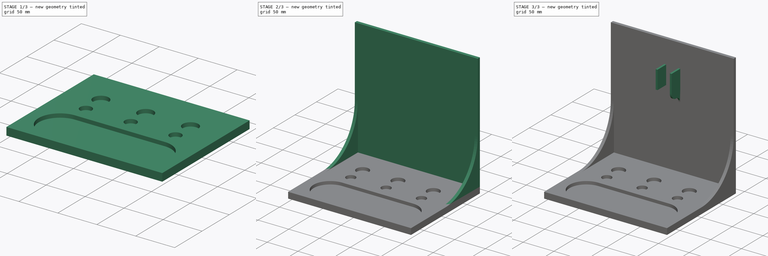
[diagram: build sequence overview — one tinted view per stage of 3, left to right]
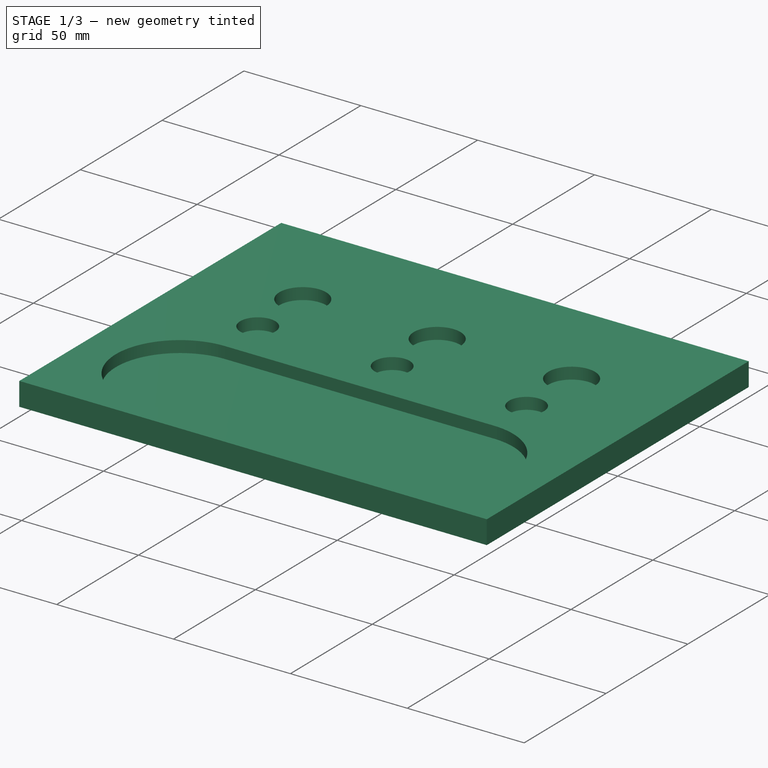
[diagram: stage 1 of 3 — iso view after this stage's code; geometry added in this stage tinted green]
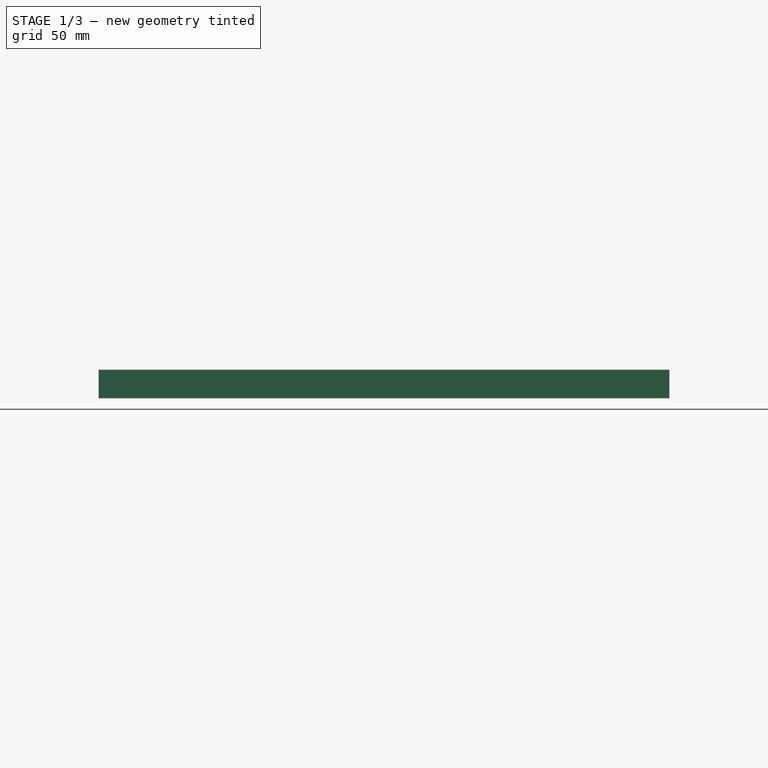
[diagram: stage 1 of 3 — front view after this stage's code; geometry added in this stage tinted green]
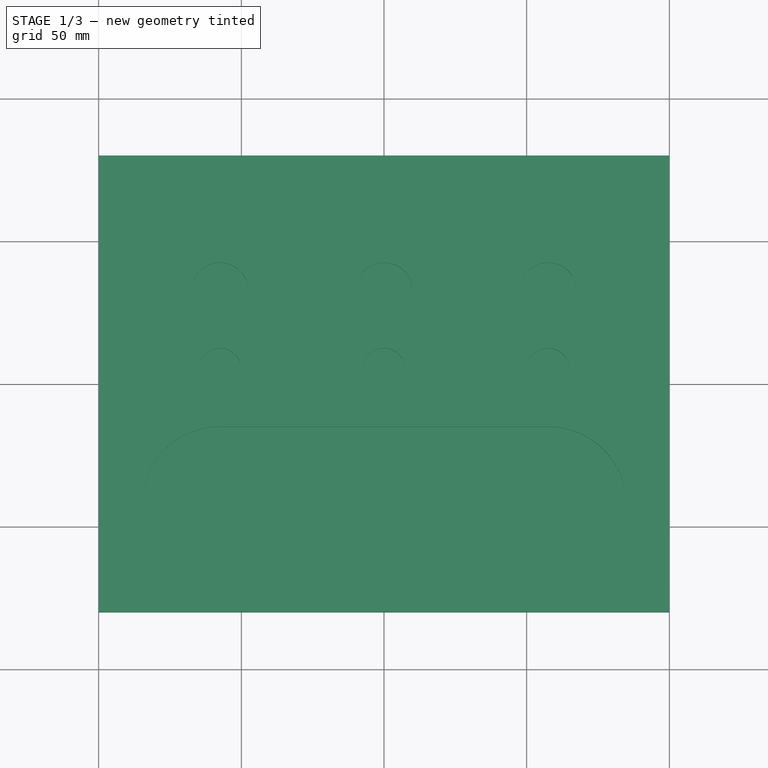
[diagram: stage 1 of 3 — top view after this stage's code; geometry added in this stage tinted green]
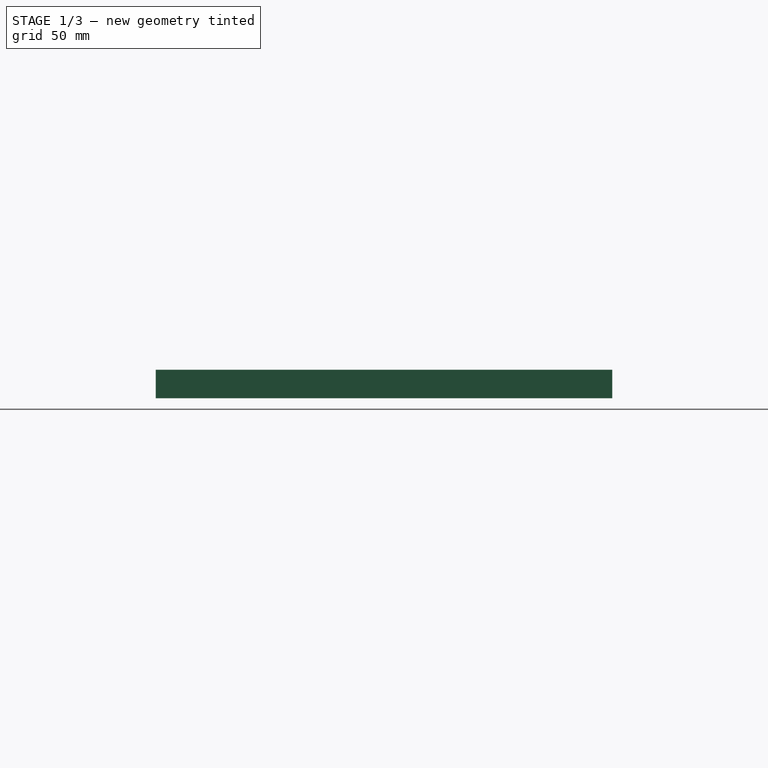
[diagram: stage 1 of 3 — right view after this stage's code; geometry added in this stage tinted green]
FCSTD DOCUMENT  (FreeCAD 0.16R6712 (Git))
Label: ToothBrushingStand
License: All rights reserved
LicenseURL: http://en.wikipedia.org/wiki/All_rights_reserved
objects: Sketcher::SketchObject×7, PartDesign::Pad×6, Spreadsheet::Sheet×1, PartDesign::Pocket×1
note: 21 computed .brp shape members not serialized (recipe doc carries the construction recipe); baked Part::Feature solids carry a one-line shape summary decoded from their .brp

FEATURE [Spreadsheet::Sheet] Spreadsheet  label="Params"
  cells = A1(Base_Depth)=160; A2(Base_Height)=10; A3(Base_Width)=200; A4(Toothpaste_Width)=55; A5(Toothpaste_Len)=170; A6(Timer_Diameter)=15; A7(Toothbrush_Diameter)=20; A8(Toothbrush_Wall)=5; A9(Toothbrush_Length)=190; A10(Toothbrush_Timer_Buffer)=10; A11(Sidewall_Radius)=75; A12(Sidewall_Thickness)=5; A13(Holder_Thickness)=3; A14(Holder_Height)=30; A15(Holder_Depth)=20
FEATURE [Sketcher::SketchObject] Sketch  label="Base"
  expr: Constraints[10] = Params.Base_Depth
  expr: Constraints[9] = Params.Base_Width
  sketch-geometry (4):
    g0: LineSegment StartX=-100 StartY=80 StartZ=0 EndX=100 EndY=80 EndZ=0
    g1: LineSegment StartX=100 StartY=80 StartZ=0 EndX=100 EndY=-80 EndZ=0
    g2: LineSegment StartX=100 StartY=-80 StartZ=0 EndX=-100 EndY=-80 EndZ=0
    g3: LineSegment StartX=-100 StartY=-80 StartZ=0 EndX=-100 EndY=80 EndZ=0
  constraints (11):
    c: Coincident(g0,g1)
    c: Coincident(g1,g2)
    c: Coincident(g2,g3)
    c: Coincident(g3,g0)
    c: Horizontal(g0)
    c: Horizontal(g2)
    c: Vertical(g1)
    c: Vertical(g3)
    c: Symmetric(g2,g0,g-1)
    c: DistanceX(g0,g0) = 200
    c: DistanceY(g3,g3) = 160
FEATURE [PartDesign::Pad] Pad  label="Base001"
  Length = 10
  Length2 = 100
  Sketch = -> Sketch
  Type = 0
  expr: Length = Params.Base_Height
FEATURE [Sketcher::SketchObject] Sketch001
  ExternalGeometry = -> [Pad]
  Placement = pos=(0,0,10) rot=(0,0,1;0rad)
  Support = -> Pad [Face6]
  sketch-geometry (10):
    g0: ArcOfCircle CenterX=-57.5 CenterY=-42.5 CenterZ=0 NormalX=0 NormalY=0 NormalZ=1 Radius=27.5 StartAngle=1.5708 EndAngle=4.71239
    g1: ArcOfCircle CenterX=57.5 CenterY=-42.5 CenterZ=0 NormalX=0 NormalY=0 NormalZ=1 Radius=27.5 StartAngle=4.71239 EndAngle=7.85398
    g2: LineSegment StartX=-57.5 StartY=-70 StartZ=0 EndX=57.5 EndY=-70 EndZ=0
    g3: LineSegment StartX=-57.5 StartY=-15 StartZ=0 EndX=57.5 EndY=-15 EndZ=0
    g4: Circle CenterX=57.5 CenterY=5 CenterZ=0 NormalX=0 NormalY=0 NormalZ=1 Radius=7.5
    g5: Circle CenterX=0 CenterY=5 CenterZ=0 NormalX=0 NormalY=0 NormalZ=1 Radius=7.5
    g6: Circle CenterX=-57.5 CenterY=5 CenterZ=0 NormalX=0 NormalY=0 NormalZ=1 Radius=7.5
    g7: Circle CenterX=-57.5 CenterY=32.5 CenterZ=0 NormalX=0 NormalY=0 NormalZ=1 Radius=10
    g8: Circle CenterX=0 CenterY=32.5 CenterZ=0 NormalX=0 NormalY=0 NormalZ=1 Radius=10
    g9: Circle CenterX=57.5 CenterY=32.5 CenterZ=0 NormalX=0 NormalY=0 NormalZ=1 Radius=10
  constraints (28):
    c: Tangent(g0,g3) = 1.5708
    c: Tangent(g0,g2) = -1.5708
    c: Tangent(g2,g1) = -1.5708
    c: Tangent(g3,g1) = 1.5708
    c: Horizontal(g2)
    c: Equal(g0,g1)
    c: DistanceY(g0,g0) = 55  'Toothpaste Width'
    c: Symmetric(g0,g1,g-2)
    c: DistanceX(g0,g1) = 115
    c: Distance(g0,g-3) = 10
    c: DistanceX(g4,g1) = 0  'Timer Hole H'
    c: DistanceY(g-1,g4) = 5  'Timer Hold V'
    c: Radius(g4) = 7.5  'TImer 3 Hold Diameter'
    c: DistanceX(g5,g-1) = 0  'Timer 2 H'
    c: DistanceX(g6,g0) = 0  'Timer 1 H'
    c: DistanceY(g4,g5) = 0  'Timer 2 V'
    c: DistanceY(g4,g6) = 0  'Timer 1 V'
    c: Radius(g5) = 7.5  'Timer 2 Hold Diameter'
    c: Radius(g6) = 7.5  'Timer 1 Hold Diameter'
    c: DistanceX(g8,g5) = 0  'Brush 2 H'
    c: DistanceX(g7,g6) = 0  'Brush 1 H'
    c: DistanceX(g9,g4) = 0  'Brush 3 H'
    c: Radius(g7) = 10  'Brush 1 Diameter'
    c: Radius(g8) = 10  'Brush 2 Diameter'
    c: Radius(g9) = 10  'Brush 3 Holder Diameter'
    c: DistanceY(g6,g7) = 27.5  'Timer 1 to Brush 1'
    c: DistanceY(g8,g7) = 0  'Brush 2 to Brush 1'
    c: DistanceY(g9,g8) = 0  'Brush 3 to Brush 2'
FEATURE [PartDesign::Pocket] Pocket  label="Base Holes"
  Length = 5
  Sketch = -> Sketch001
  Type = 0
  expr: Length = Params.Base_Height / 2
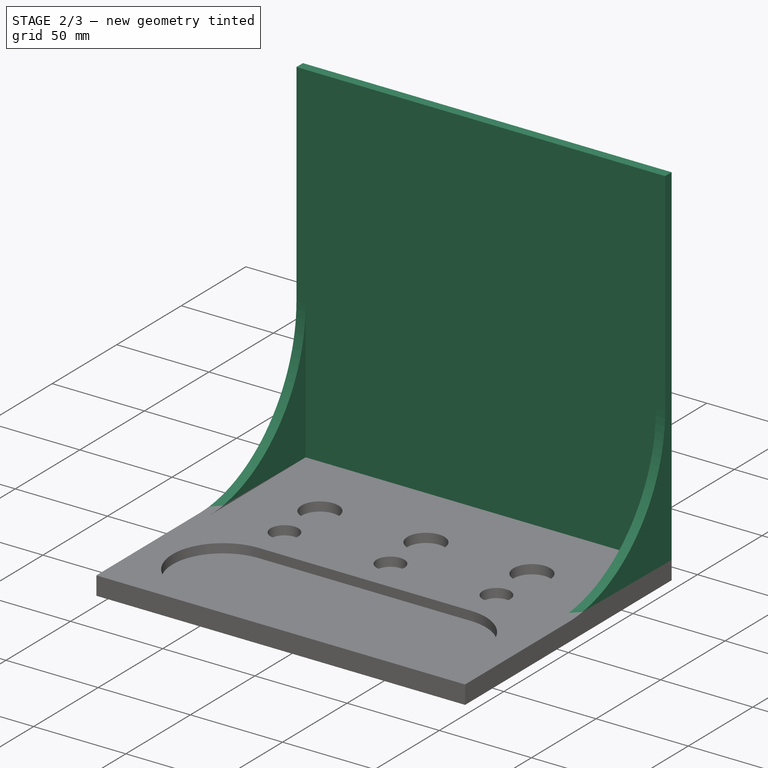
[diagram: stage 2 of 3 — iso view after this stage's code; geometry added in this stage tinted green]
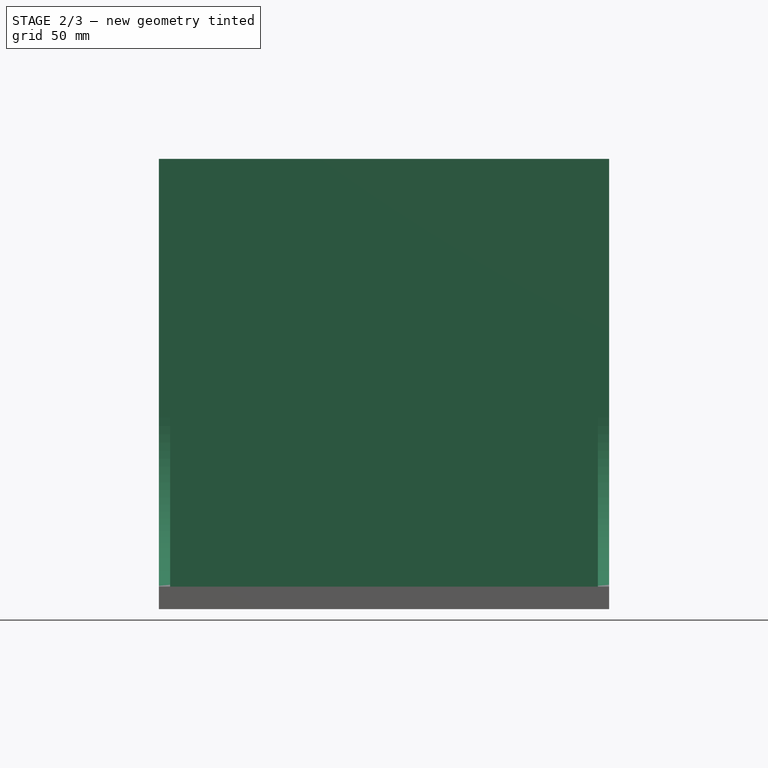
[diagram: stage 2 of 3 — front view after this stage's code; geometry added in this stage tinted green]
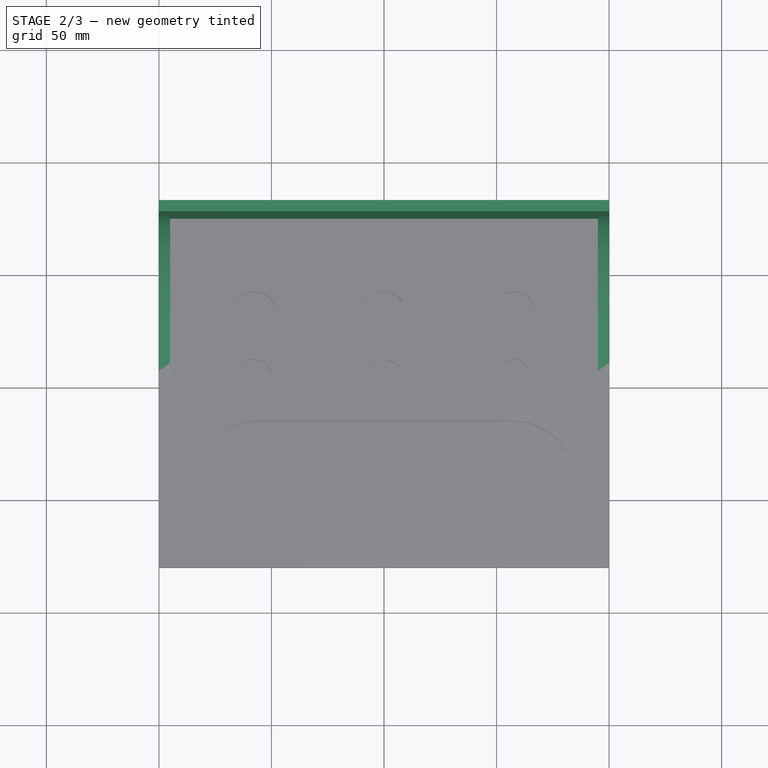
[diagram: stage 2 of 3 — top view after this stage's code; geometry added in this stage tinted green]
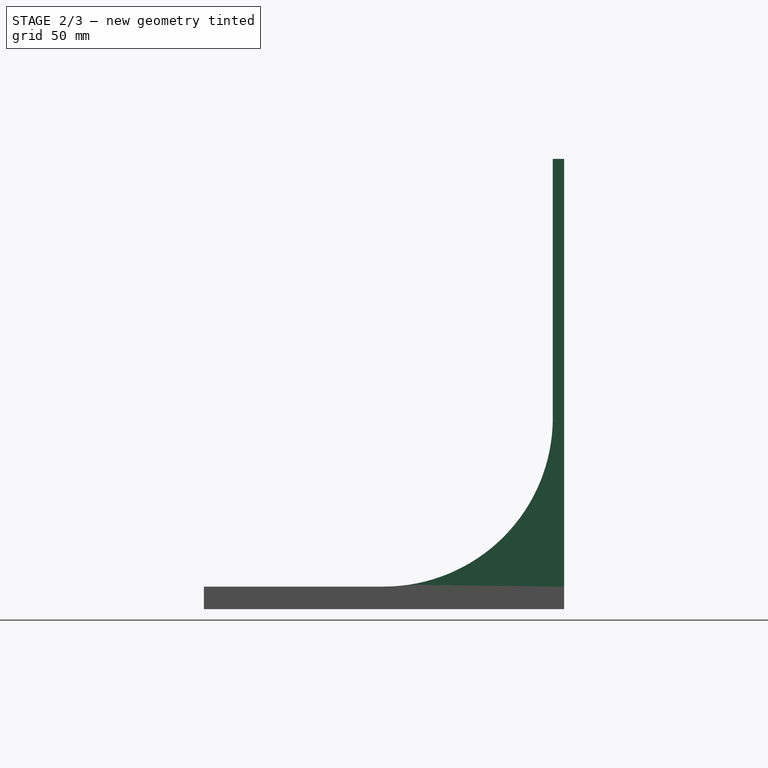
[diagram: stage 2 of 3 — right view after this stage's code; geometry added in this stage tinted green]
FEATURE [Sketcher::SketchObject] Sketch002
  ExternalGeometry = -> [Pocket]
  Placement = pos=(0,0,10) rot=(0,0,1;0rad)
  Support = -> Pocket [Face5]
  sketch-geometry (4):
    g0: LineSegment StartX=-100 StartY=80 StartZ=0 EndX=100 EndY=80 EndZ=0
    g1: LineSegment StartX=100 StartY=80 StartZ=0 EndX=100 EndY=75 EndZ=0
    g2: LineSegment StartX=100 StartY=75 StartZ=0 EndX=-100 EndY=75 EndZ=0
    g3: LineSegment StartX=-100 StartY=75 StartZ=0 EndX=-100 EndY=80 EndZ=0
  constraints (11):
    c: Coincident(g0,g1)
    c: Coincident(g1,g2)
    c: Coincident(g2,g3)
    c: Coincident(g3,g0)
    c: Horizontal(g0)
    c: Horizontal(g2)
    c: Vertical(g1)
    c: Vertical(g3)
    c: Coincident(g0,g-3)
    c: Coincident(g0,g-3)
    c: DistanceY(g1,g0) = 5  'Toothbrush Wall Thickness'
FEATURE [PartDesign::Pad] Pad001  label="Back Wall"
  Length = 190
  Length2 = 100
  Sketch = -> Sketch002
  Type = 0
  expr: Length = Params.Toothbrush_Length
FEATURE [Sketcher::SketchObject] Sketch003
  ExternalGeometry = -> [Pad001]
  Placement = pos=(100,0,0) rot=(0.57735,0.57735,0.57735;2.0944rad)
  Support = -> Pad001 [Face3]
  expr: Constraints[8] = Params.Sidewall_Radius
  sketch-geometry (3):
    g0: LineSegment StartX=75 StartY=10 StartZ=0 EndX=2.3e-11 EndY=10 EndZ=0
    g1: LineSegment StartX=75 StartY=10 StartZ=0 EndX=75 EndY=85 EndZ=0
    g2: ArcOfCircle CenterX=0 CenterY=85 CenterZ=0 NormalX=0 NormalY=0 NormalZ=1 Radius=75 StartAngle=4.71239 EndAngle=6.28319
  constraints (9):
    c: Coincident(g0,g-4)
    c: Coincident(g1,g0)
    c: Parallel(g1,g-3)
    c: Angle(g-3,g0) = 1.5708
    c: Equal(g0,g1)
    c: Distance(g1) = 75  'Sidewall Radius'
    c: Coincident(g2,g1)
    c: Coincident(g2,g0)
    c: Radius(g2) = 75
FEATURE [PartDesign::Pad] Pad002  label="Wall Support"
  Length = 5
  Length2 = 100
  Reversed = true
  Sketch = -> Sketch003
  Type = 0
  expr: Length = Params.Sidewall_Thickness
FEATURE [Sketcher::SketchObject] Sketch004
  ExternalGeometry = -> [Pad002]
  Placement = pos=(-100,0,0) rot=(0.57735,-0.57735,-0.57735;2.0944rad)
  Support = -> Pad002 [Face10]
  expr: Constraints[6] = Params.Sidewall_Radius
  expr: Constraints[3] = Params.Sidewall_Radius
  sketch-geometry (3):
    g0: LineSegment StartX=-75 StartY=10 StartZ=0 EndX=2.3e-11 EndY=10 EndZ=0
    g1: LineSegment StartX=-75 StartY=10 StartZ=0 EndX=-75 EndY=85 EndZ=0
    g2: ArcOfCircle CenterX=0 CenterY=85 CenterZ=0 NormalX=0 NormalY=0 NormalZ=1 Radius=75 StartAngle=3.14159 EndAngle=4.71239
  constraints (9):
    c: Vertical(g1)
    c: Coincident(g0,g-4)
    c: Coincident(g1,g0)
    c: Distance(g1) = 75
    c: Equal(g1,g0)
    c: Angle(g0,g1) = 1.5708
    c: Radius(g2) = 75
    c: Coincident(g2,g1)
    c: Coincident(g0,g2)
FEATURE [PartDesign::Pad] Pad003  label="Wall Support001"
  Length = 5
  Length2 = 100
  Reversed = true
  Sketch = -> Sketch004
  Type = 0
  expr: Length = Params.Sidewall_Thickness
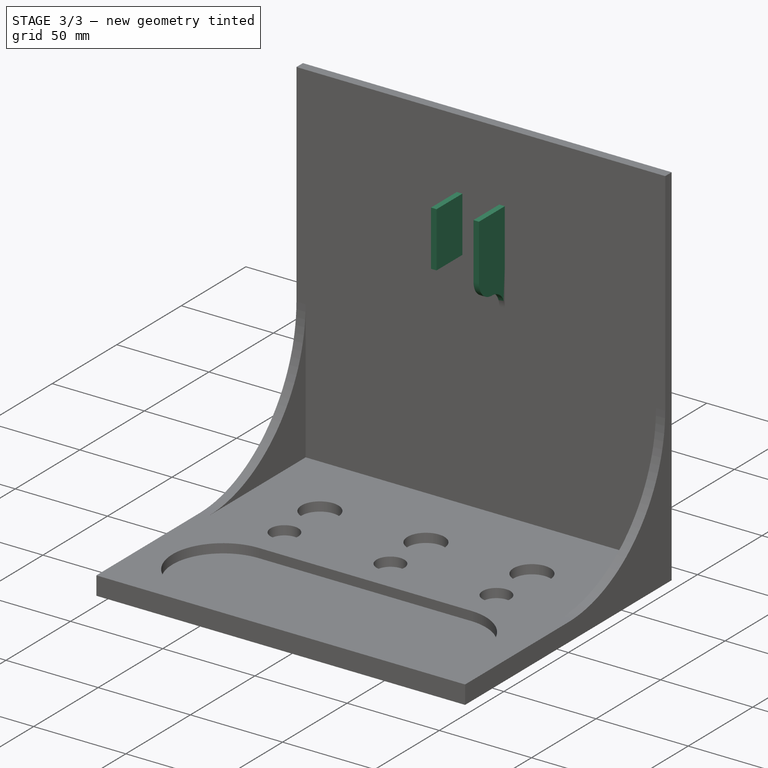
[diagram: stage 3 of 3 — iso view after this stage's code; geometry added in this stage tinted green]
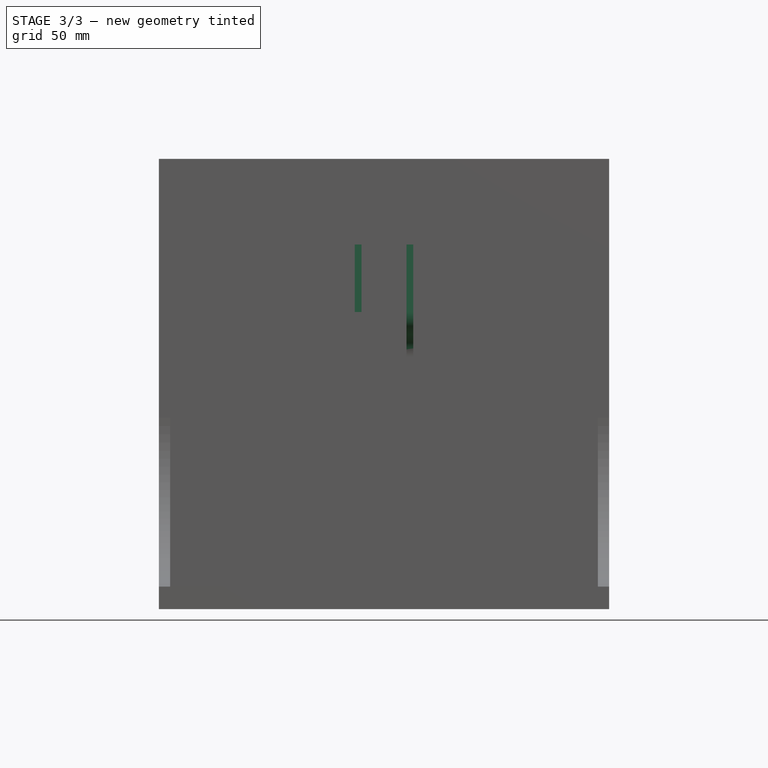
[diagram: stage 3 of 3 — front view after this stage's code; geometry added in this stage tinted green]
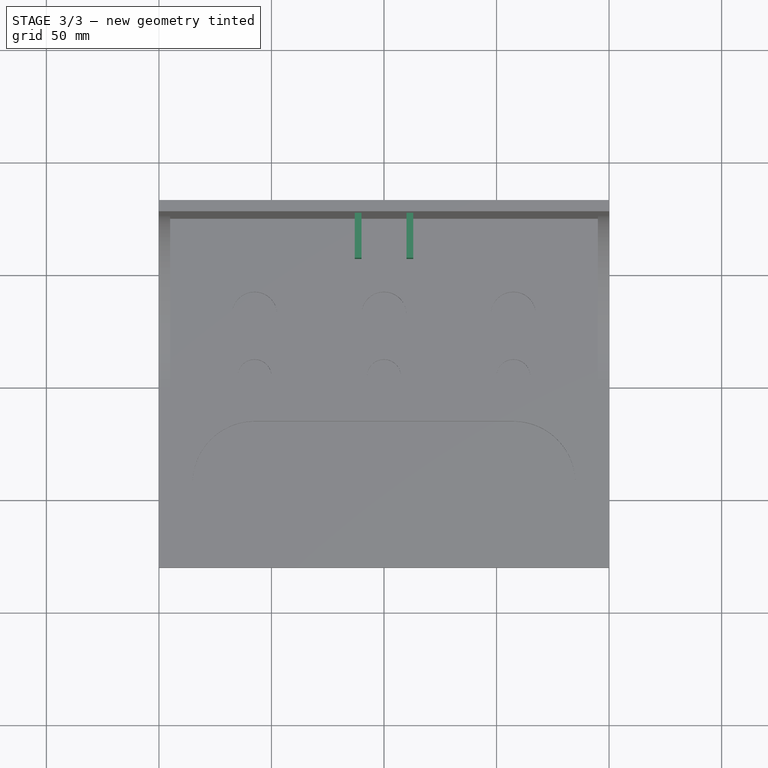
[diagram: stage 3 of 3 — top view after this stage's code; geometry added in this stage tinted green]
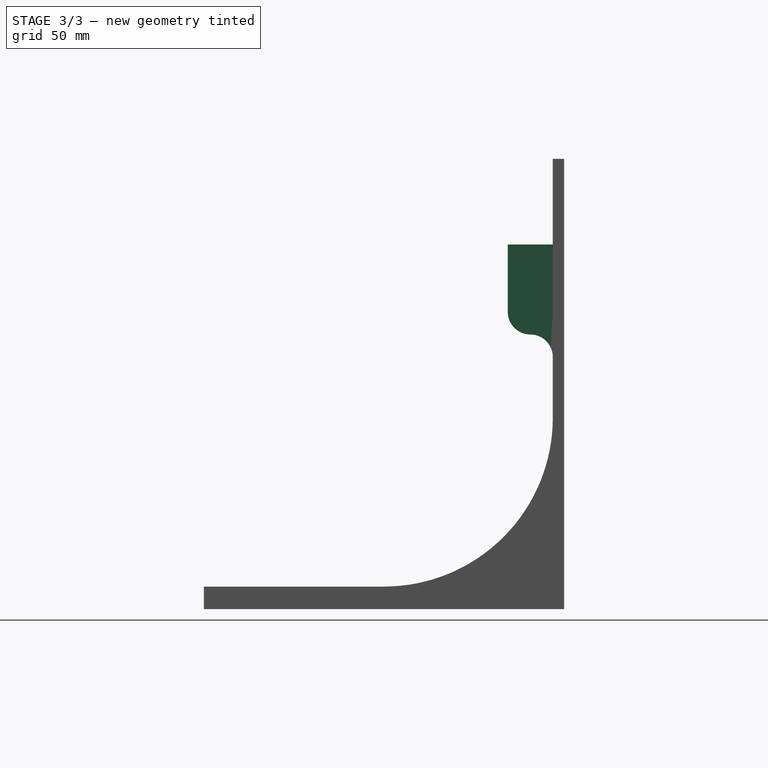
[diagram: stage 3 of 3 — right view after this stage's code; geometry added in this stage tinted green]
FEATURE [Sketcher::SketchObject] Sketch005
  ExternalGeometry = -> [Pad003]
  Placement = pos=(0,75,0) rot=(1,0,0;1.5708rad)
  Support = -> Pad003 [Face13]
  expr: Constraints[21] = Params.Toothbrush_Diameter / 2
  expr: Constraints[20] = Params.Toothbrush_Diameter / 2
  expr: Constraints[19] = Params.Holder_Thickness
  expr: Constraints[17] = Params.Holder_Height
  expr: Constraints[18] = Params.Holder_Height
  expr: Constraints[16] = Params.Holder_Thickness
  expr: Constraints[22] = Params.Toothbrush_Length * 0.2
  sketch-geometry (8):
    g0: LineSegment StartX=-13 StartY=162 StartZ=0 EndX=-10 EndY=162 EndZ=0
    g1: LineSegment StartX=-10 StartY=162 StartZ=0 EndX=-10 EndY=132 EndZ=0
    g2: LineSegment StartX=-10 StartY=132 StartZ=0 EndX=-13 EndY=132 EndZ=0
    g3: LineSegment StartX=-13 StartY=132 StartZ=0 EndX=-13 EndY=162 EndZ=0
    g4: LineSegment StartX=10 StartY=162 StartZ=0 EndX=13 EndY=162 EndZ=0
    g5: LineSegment StartX=13 StartY=162 StartZ=0 EndX=13 EndY=132 EndZ=0
    g6: LineSegment StartX=13 StartY=132 StartZ=0 EndX=10 EndY=132 EndZ=0
    g7: LineSegment StartX=10 StartY=132 StartZ=0 EndX=10 EndY=162 EndZ=0
  constraints (24):
    c: Coincident(g0,g1)
    c: Coincident(g1,g2)
    c: Coincident(g2,g3)
    c: Coincident(g3,g0)
    c: Horizontal(g0)
    c: Horizontal(g2)
    c: Vertical(g1)
    c: Vertical(g3)
    c: Coincident(g4,g5)
    c: Coincident(g5,g6)
    c: Coincident(g6,g7)
    c: Coincident(g7,g4)
    c: Horizontal(g4)
    c: Horizontal(g6)
    c: Vertical(g5)
    c: Vertical(g7)
    c: DistanceX(g0,g0) = 3
    c: DistanceY(g3,g3) = 30
    c: DistanceY(g7,g7) = 30
    c: DistanceX(g4,g4) = 3
    c: DistanceX(g0,g-1) = 10
    c: DistanceX(g-1,g4) = 10
    c: Distance(g0,g-3) = 38
    c: DistanceY(g0,g4) = 0
FEATURE [PartDesign::Pad] Pad004  label="Brush Holders"
  Length = 20
  Length2 = 100
  Sketch = -> Sketch005
  Type = 0
  expr: Length = Params.Holder_Depth
FEATURE [Sketcher::SketchObject] Sketch006
  ExternalGeometry = -> [Pad004]
  Placement = pos=(13,0,0) rot=(0.57735,0.57735,0.57735;2.0944rad)
  Support = -> Pad004 [Face30]
  expr: Constraints[2] = Params.Holder_Depth / 2
  sketch-geometry (4):
    g0: ArcOfCircle CenterX=65 CenterY=132 CenterZ=0 NormalX=0 NormalY=0 NormalZ=1 Radius=10 StartAngle=3.14159 EndAngle=4.71239
    g1: ArcOfCircle CenterX=65 CenterY=112 CenterZ=0 NormalX=0 NormalY=0 NormalZ=1 Radius=10 StartAngle=6.28318 EndAngle=7.85398
    g2: LineSegment StartX=55 StartY=132 StartZ=0 EndX=75 EndY=132 EndZ=0
    g3: LineSegment StartX=75 StartY=132 StartZ=0 EndX=75 EndY=112 EndZ=0
  constraints (13):
    c: Tangent(g0,g-3) = -1.5708
    c: Coincident(g0,g-3)
    c: Radius(g0) = 10
    c: Angle(g0) = 1.5708
    c: Coincident(g1,g0)
    c: Tangent(g1,g0)
    c: Radius(g1) = 10
    c: Angle(g1) = 1.5708
    c: Horizontal(g2)
    c: Coincident(g2,g0)
    c: Coincident(g2,g-4)
    c: Coincident(g3,g2)
    c: Coincident(g1,g3)
FEATURE [PartDesign::Pad] Pad005
  Length = 3
  Length2 = 100
  Reversed = true
  Sketch = -> Sketch006
  Type = 0
  expr: Length = Params.Holder_Thickness
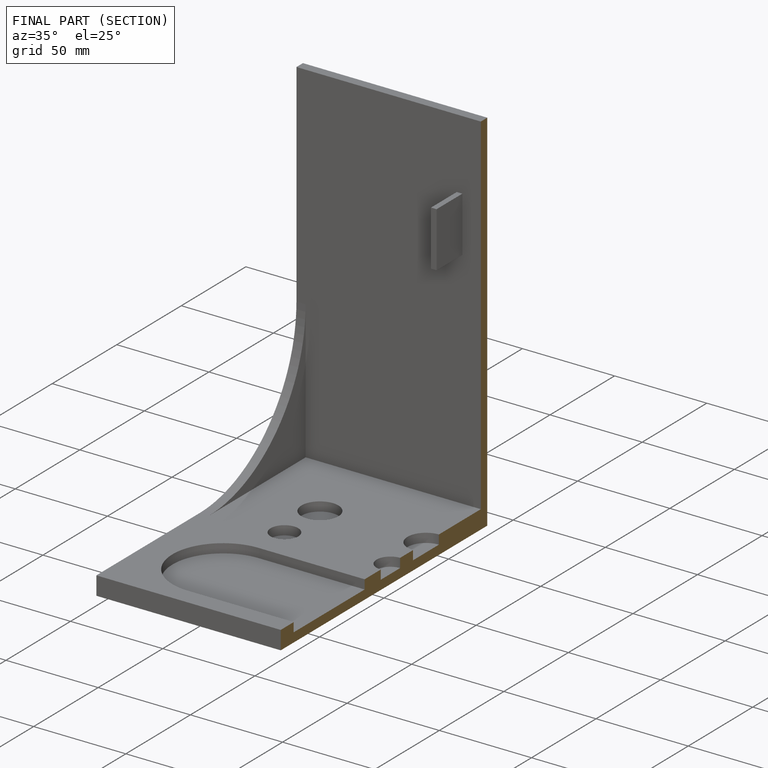
[diagram: finished part — half-section view (interior)]
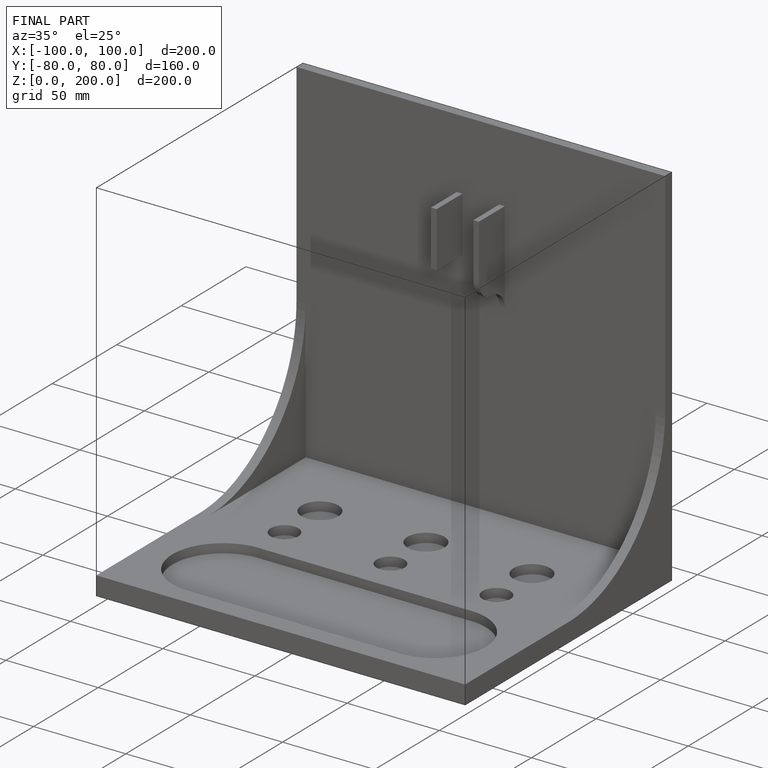
[diagram: finished part — iso view with bounding-box wireframe]
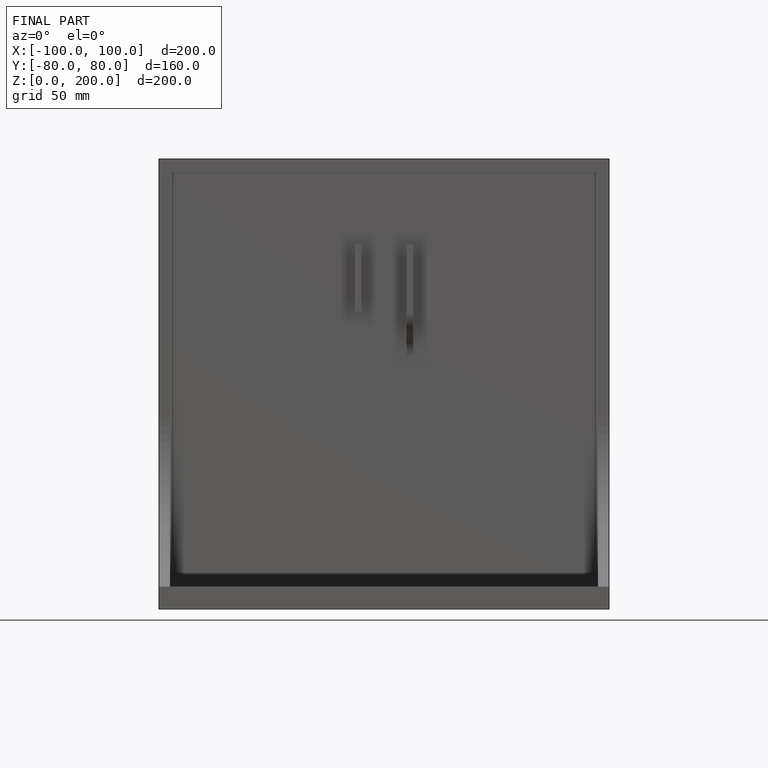
[diagram: finished part — front view with bounding-box wireframe]
